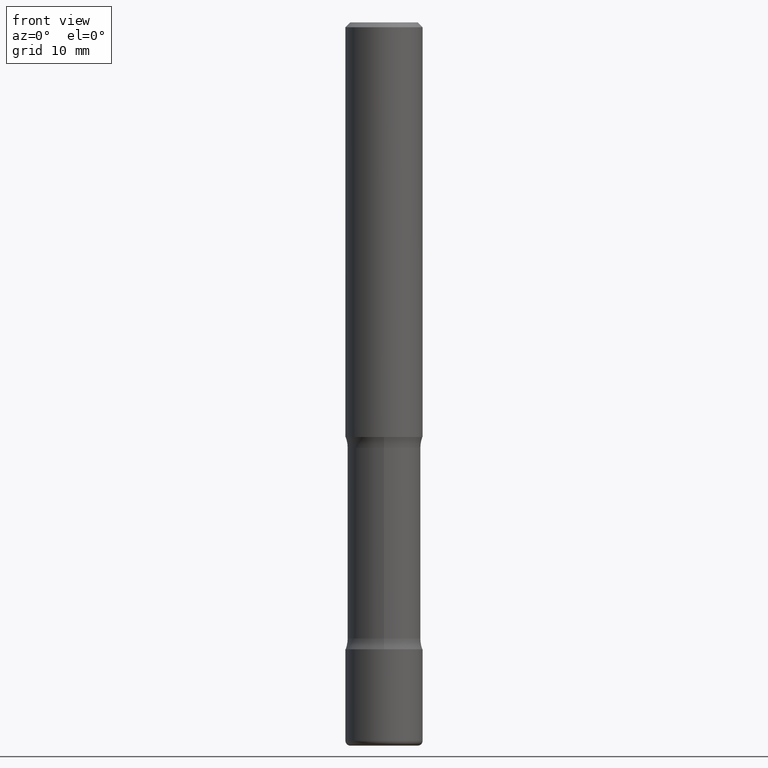
[diagram: clean part render]
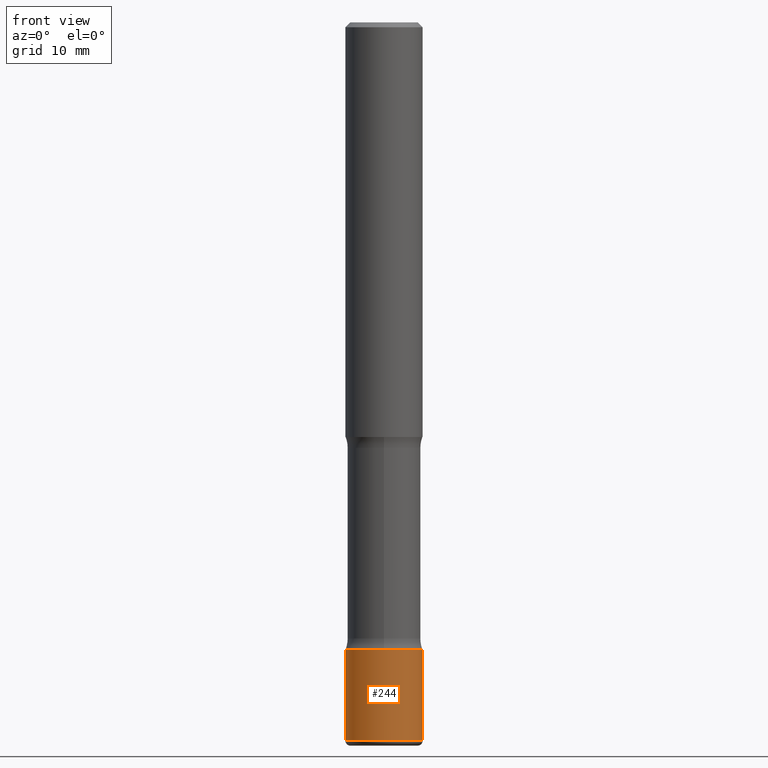
[diagram: same view with one face highlighted and labeled with its STEP entity id]
A machine part, front view. The second image highlights one B-rep face of the part: STEP entity #244.
In plain terms, the highlighted cylindrical surface (partial cylindrical patch) has radius 4.0005 mm, axis along (-0, 0, 1).
Its self-contained STEP definition (entity closure, byte-faithful):
#6 = FACE_OUTER_BOUND ( 'NONE', #8, .T. ) ;
#8 = EDGE_LOOP ( 'NONE', ( #203, #394, #153, #265 ) ) ;
#9 = AXIS2_PLACEMENT_3D ( 'NONE', #160, #38, #344 ) ;
#11 = CYLINDRICAL_SURFACE ( 'NONE', #178, 0.1575000000000001954 ) ;
#18 = AXIS2_PLACEMENT_3D ( 'NONE', #318, #184, #494 ) ;
#38 = DIRECTION ( 'NONE',  ( -2.445468806185136597E-29, 3.491481338843145583E-15, 1.000000000000000000 ) ) ;
#51 = CARTESIAN_POINT ( 'NONE',  ( 0.1575000000000001954, -1.003486651596908046E-14, -2.559099999999999486 ) ) ;
#95 = CARTESIAN_POINT ( 'NONE',  ( -0.1575000000000001954, -8.468852095775002161E-15, -2.559099999999999486 ) ) ;
#144 = DIRECTION ( 'NONE',  ( -2.445468806185136877E-29, 3.491481338843145188E-15, 1.000000000000000000 ) ) ;
#153 = ORIENTED_EDGE ( 'NONE', *, *, #518, .T. ) ;
#160 = CARTESIAN_POINT ( 'NONE',  ( 6.258199221908381703E-29, -8.935049894233492186E-15, -2.559099999999999486 ) ) ;
#164 = CARTESIAN_POINT ( 'NONE',  ( 0.000000000000000000, 0.000000000000000000, 0.000000000000000000 ) ) ;
#172 = DIRECTION ( 'NONE',  ( 1.000000000000000000, -6.982962677686267499E-15, 4.876176775795935232E-29 ) ) ;
#178 = AXIS2_PLACEMENT_3D ( 'NONE', #164, #348, #172 ) ;
#184 = DIRECTION ( 'NONE',  ( -2.445468806185136597E-29, 3.491481338843145583E-15, 1.000000000000000000 ) ) ;
#186 = CARTESIAN_POINT ( 'NONE',  ( -0.1575000000000001954, 1.119104808822159181E-15, -7.747322767151486794E-30 ) ) ;
#203 = ORIENTED_EDGE ( 'NONE', *, *, #285, .F. ) ;
#205 = EDGE_CURVE ( 'NONE', #528, #305, #283, .T. ) ;
#239 = CARTESIAN_POINT ( 'NONE',  ( 0.1575000000000001676, -1.134068053669641877E-14, -2.933100000000000041 ) ) ;
#244 = ADVANCED_FACE ( 'NONE', ( #6 ), #11, .T. ) ;
#265 = ORIENTED_EDGE ( 'NONE', *, *, #205, .F. ) ;
#283 = CIRCLE ( 'NONE', #9, 0.1575000000000001954 ) ;
#285 = EDGE_CURVE ( 'NONE', #346, #528, #414, .T. ) ;
#293 = CARTESIAN_POINT ( 'NONE',  ( 0.1575000000000001954, -1.099816621735588466E-15, 7.679978421878607842E-30 ) ) ;
#305 = VERTEX_POINT ( 'NONE', #51 ) ;
#304 = CARTESIAN_POINT ( 'NONE',  ( -0.1575000000000001676, -9.121759106138672895E-15, -2.933100000000000041 ) ) ;
#318 = CARTESIAN_POINT ( 'NONE',  ( 7.172804555421624566E-29, -1.024086391496083050E-14, -2.933100000000000041 ) ) ;
#344 = DIRECTION ( 'NONE',  ( 1.000000000000000000, -6.982962677686265922E-15, 0.000000000000000000 ) ) ;
#346 = VERTEX_POINT ( 'NONE', #304 ) ;
#348 = DIRECTION ( 'NONE',  ( -2.445468806185136597E-29, 3.491481338843145583E-15, 1.000000000000000000 ) ) ;
#394 = ORIENTED_EDGE ( 'NONE', *, *, #525, .T. ) ;
#414 = LINE ( 'NONE', #186, #536 ) ;
#482 = DIRECTION ( 'NONE',  ( -2.445468806185136877E-29, 3.491481338843145188E-15, 1.000000000000000000 ) ) ;
#494 = DIRECTION ( 'NONE',  ( 1.000000000000000000, -6.982962677686265922E-15, 0.000000000000000000 ) ) ;
#514 = CIRCLE ( 'NONE', #18, 0.1575000000000001954 ) ;
#518 = EDGE_CURVE ( 'NONE', #549, #305, #559, .T. ) ;
#525 = EDGE_CURVE ( 'NONE', #346, #549, #514, .T. ) ;
#528 = VERTEX_POINT ( 'NONE', #95 ) ;
#535 = VECTOR ( 'NONE', #482, 39.37007874015748143 ) ;
#536 = VECTOR ( 'NONE', #144, 39.37007874015748143 ) ;
#549 = VERTEX_POINT ( 'NONE', #239 ) ;
#559 = LINE ( 'NONE', #293, #535 ) ;